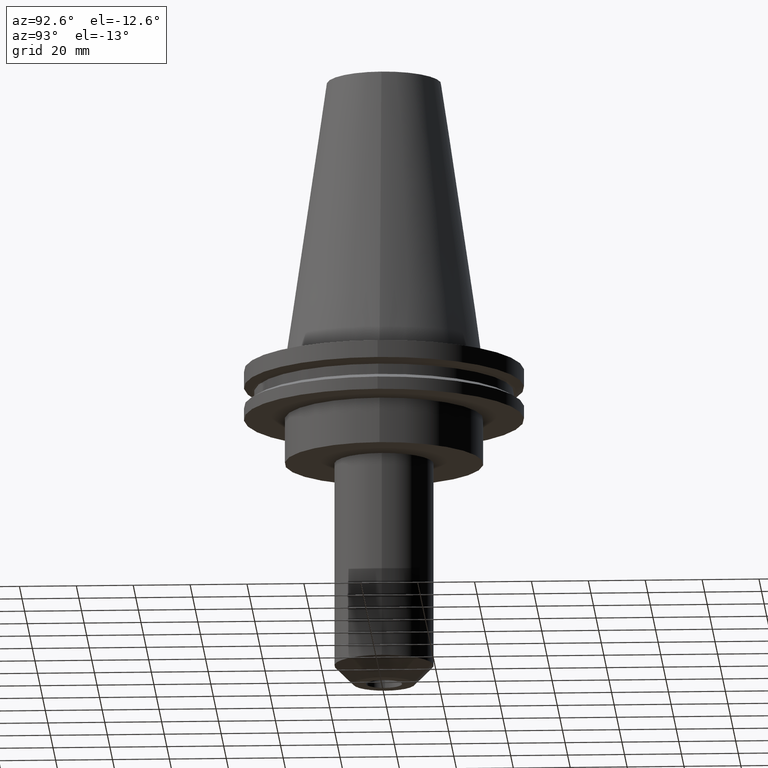
[diagram: clean part render]
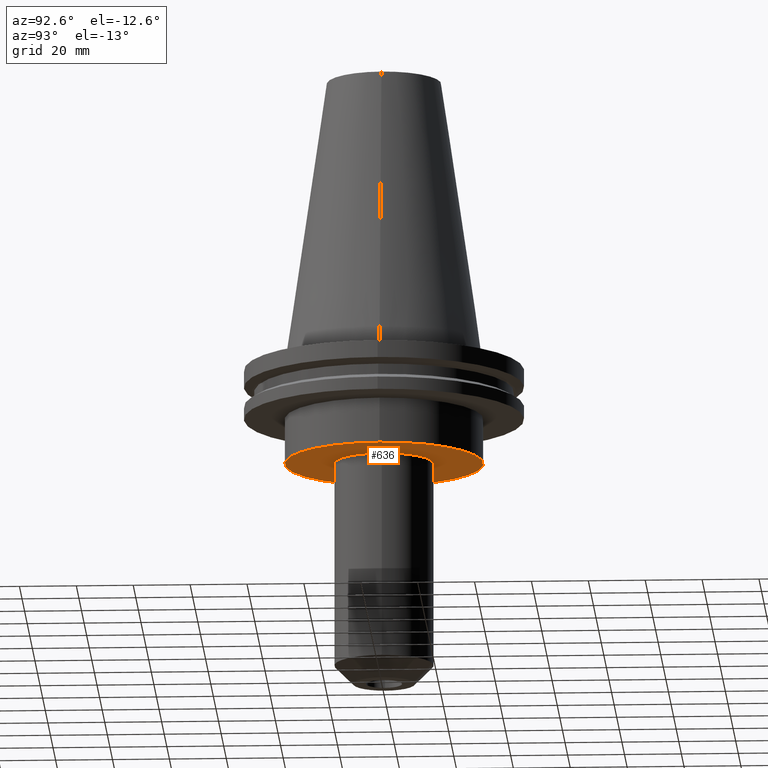
[diagram: same view with one face highlighted and labeled with its STEP entity id]
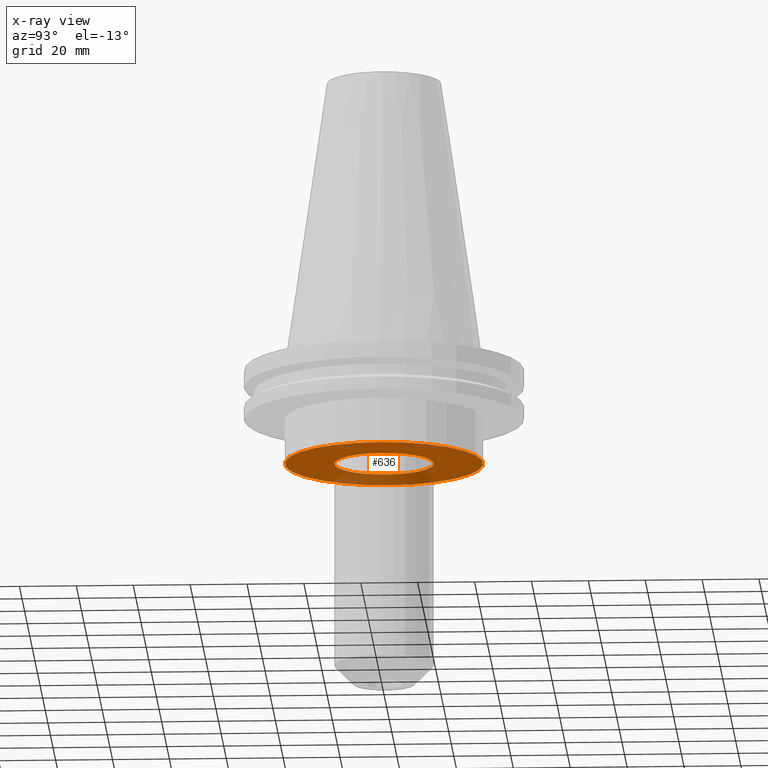
[diagram: x-ray of the same camera — body ghosted, the highlighted face saturated]
A machine part, auxiliary view. The second image highlights one B-rep face of the part: STEP entity #636.
The next image is the same camera in x-ray: the body ghosted, the highlighted face saturated — about 20% of this face is hidden behind the body in this view.
In plain terms, the highlighted planar face has unit normal (0, -0, 1).
Its self-contained STEP definition (entity closure, byte-faithful):
#13 = EDGE_CURVE ( 'NONE', #65, #807, #760, .T. ) ;
#46 = VERTEX_POINT ( 'NONE', #295 ) ;
#50 = EDGE_LOOP ( 'NONE', ( #405, #89 ) ) ;
#62 = EDGE_LOOP ( 'NONE', ( #694, #263 ) ) ;
#65 = VERTEX_POINT ( 'NONE', #692 ) ;
#78 = DIRECTION ( 'NONE',  ( 1.000000000000000000, 0.000000000000000000, 0.000000000000000000 ) ) ;
#89 = ORIENTED_EDGE ( 'NONE', *, *, #241, .F. ) ;
#142 = CIRCLE ( 'NONE', #193, 34.92499999999999716 ) ;
#162 = DIRECTION ( 'NONE',  ( 1.000000000000000000, 0.000000000000000000, 0.000000000000000000 ) ) ;
#193 = AXIS2_PLACEMENT_3D ( 'NONE', #204, #274, #345 ) ;
#194 = FACE_BOUND ( 'NONE', #62, .T. ) ;
#195 = AXIS2_PLACEMENT_3D ( 'NONE', #456, #526, #78 ) ;
#204 = CARTESIAN_POINT ( 'NONE',  ( 0.000000000000000000, 0.000000000000000000, -35.04999999999999716 ) ) ;
#211 = DIRECTION ( 'NONE',  ( 0.000000000000000000, 0.000000000000000000, -1.000000000000000000 ) ) ;
#241 = EDGE_CURVE ( 'NONE', #46, #490, #142, .T. ) ;
#263 = ORIENTED_EDGE ( 'NONE', *, *, #13, .F. ) ;
#274 = DIRECTION ( 'NONE',  ( -0.000000000000000000, -0.000000000000000000, 1.000000000000000000 ) ) ;
#276 = DIRECTION ( 'NONE',  ( -0.000000000000000000, -0.000000000000000000, 1.000000000000000000 ) ) ;
#281 = AXIS2_PLACEMENT_3D ( 'NONE', #607, #211, #286 ) ;
#286 = DIRECTION ( 'NONE',  ( 1.000000000000000000, 0.000000000000000000, 0.000000000000000000 ) ) ;
#295 = CARTESIAN_POINT ( 'NONE',  ( -34.92499999999999716, 4.277078946022130887E-15, -35.04999999999999716 ) ) ;
#342 = CARTESIAN_POINT ( 'NONE',  ( 0.000000000000000000, 0.000000000000000000, -35.04999999999999716 ) ) ;
#345 = DIRECTION ( 'NONE',  ( 1.000000000000000000, 0.000000000000000000, 0.000000000000000000 ) ) ;
#353 = DIRECTION ( 'NONE',  ( 0.000000000000000000, 0.000000000000000000, -1.000000000000000000 ) ) ;
#373 = CARTESIAN_POINT ( 'NONE',  ( 34.92499999999999716, 0.000000000000000000, -35.04999999999999716 ) ) ;
#386 = CIRCLE ( 'NONE', #682, 34.92499999999999716 ) ;
#393 = AXIS2_PLACEMENT_3D ( 'NONE', #771, #353, #626 ) ;
#399 = FACE_OUTER_BOUND ( 'NONE', #50, .T. ) ;
#405 = ORIENTED_EDGE ( 'NONE', *, *, #842, .F. ) ;
#456 = CARTESIAN_POINT ( 'NONE',  ( 0.000000000000000000, 34.92499999999999716, -35.04999999999999716 ) ) ;
#490 = VERTEX_POINT ( 'NONE', #373 ) ;
#526 = DIRECTION ( 'NONE',  ( 0.000000000000000000, -0.000000000000000000, 1.000000000000000000 ) ) ;
#607 = CARTESIAN_POINT ( 'NONE',  ( 0.000000000000000000, 0.000000000000000000, -35.04999999999999716 ) ) ;
#626 = DIRECTION ( 'NONE',  ( 1.000000000000000000, 0.000000000000000000, 0.000000000000000000 ) ) ;
#636 = ADVANCED_FACE ( 'NONE', ( #399, #194 ), #665, .F. ) ;
#652 = CIRCLE ( 'NONE', #281, 17.44999999999998863 ) ;
#665 = PLANE ( 'NONE',  #195 ) ;
#682 = AXIS2_PLACEMENT_3D ( 'NONE', #342, #276, #162 ) ;
#692 = CARTESIAN_POINT ( 'NONE',  ( -17.44999999999998863, 2.137008664512129992E-15, -35.04999999999999716 ) ) ;
#694 = ORIENTED_EDGE ( 'NONE', *, *, #822, .F. ) ;
#760 = CIRCLE ( 'NONE', #393, 17.44999999999998863 ) ;
#771 = CARTESIAN_POINT ( 'NONE',  ( 0.000000000000000000, 0.000000000000000000, -35.04999999999999716 ) ) ;
#807 = VERTEX_POINT ( 'NONE', #808 ) ;
#808 = CARTESIAN_POINT ( 'NONE',  ( 17.44999999999998863, 0.000000000000000000, -35.04999999999999716 ) ) ;
#822 = EDGE_CURVE ( 'NONE', #807, #65, #652, .T. ) ;
#842 = EDGE_CURVE ( 'NONE', #490, #46, #386, .T. ) ;